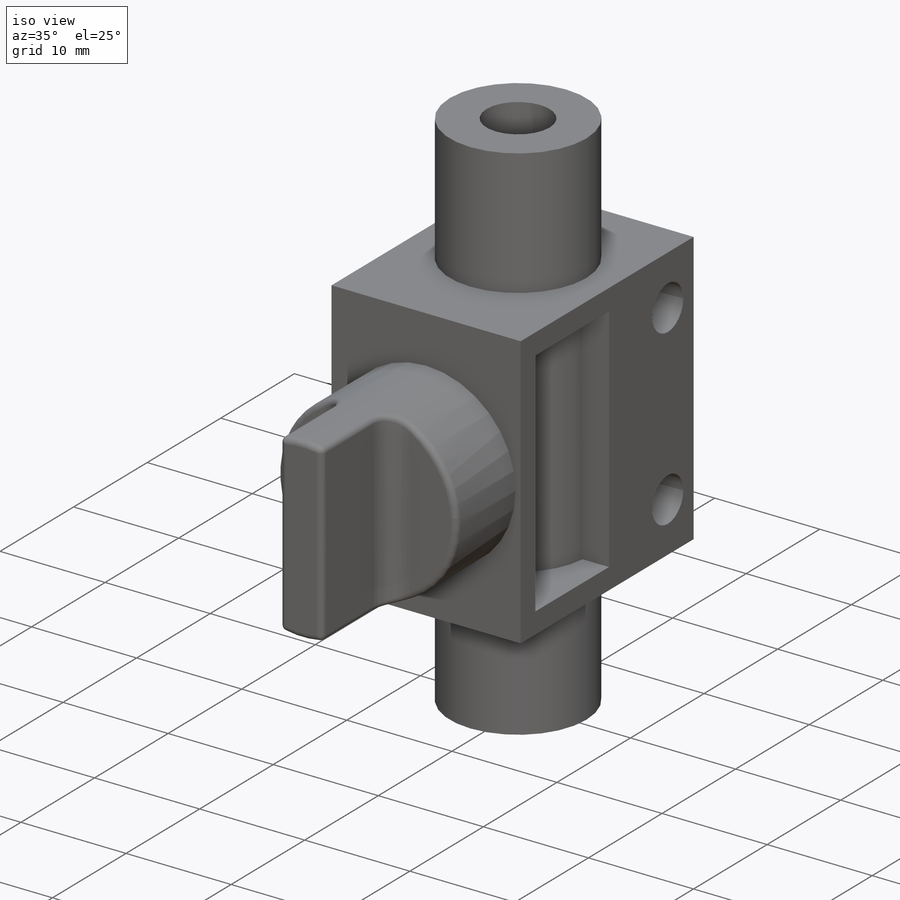
[diagram: iso view]
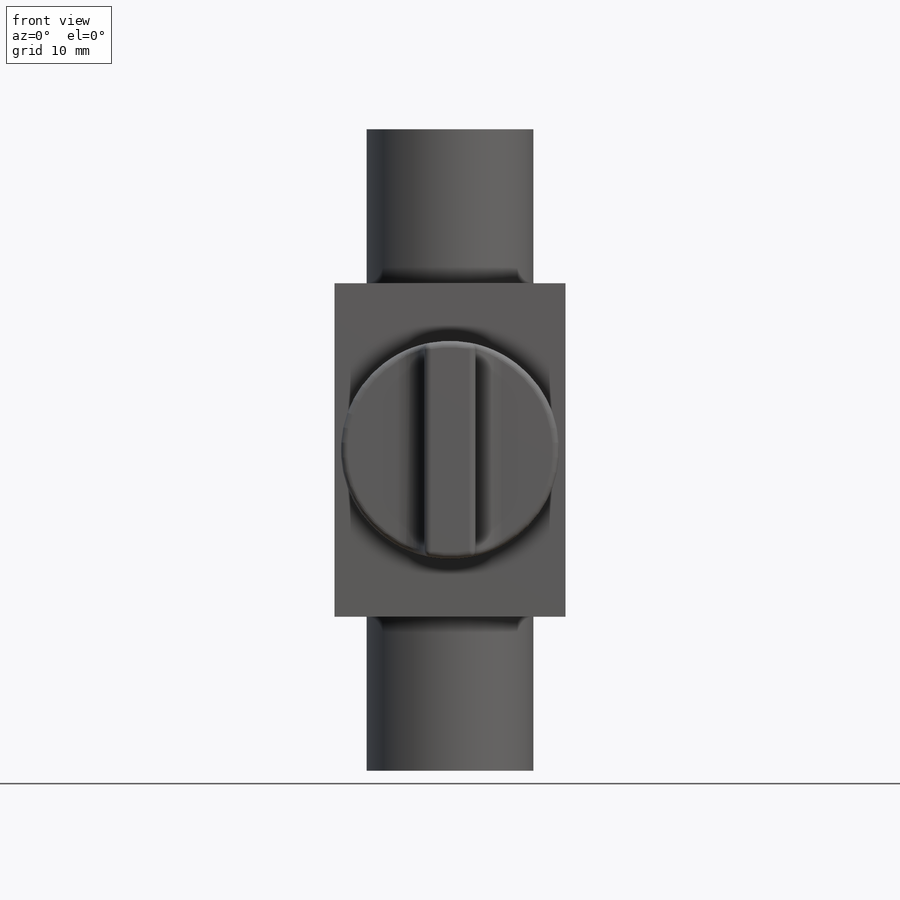
[diagram: front view]
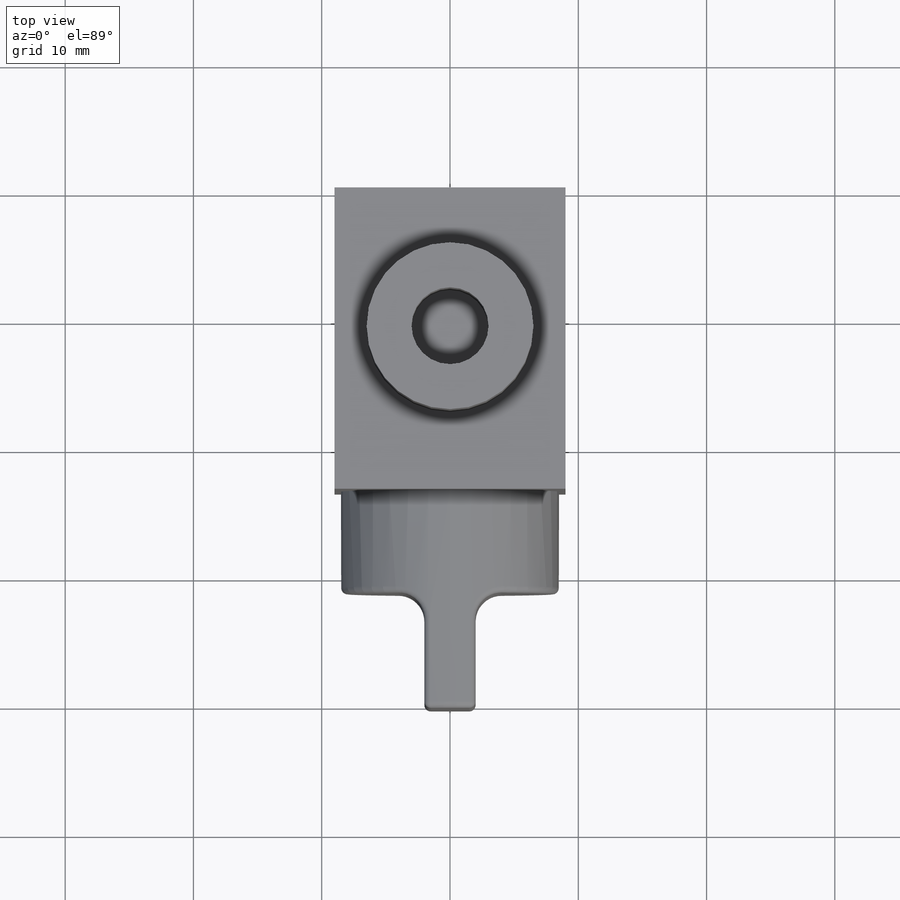
[diagram: top view]
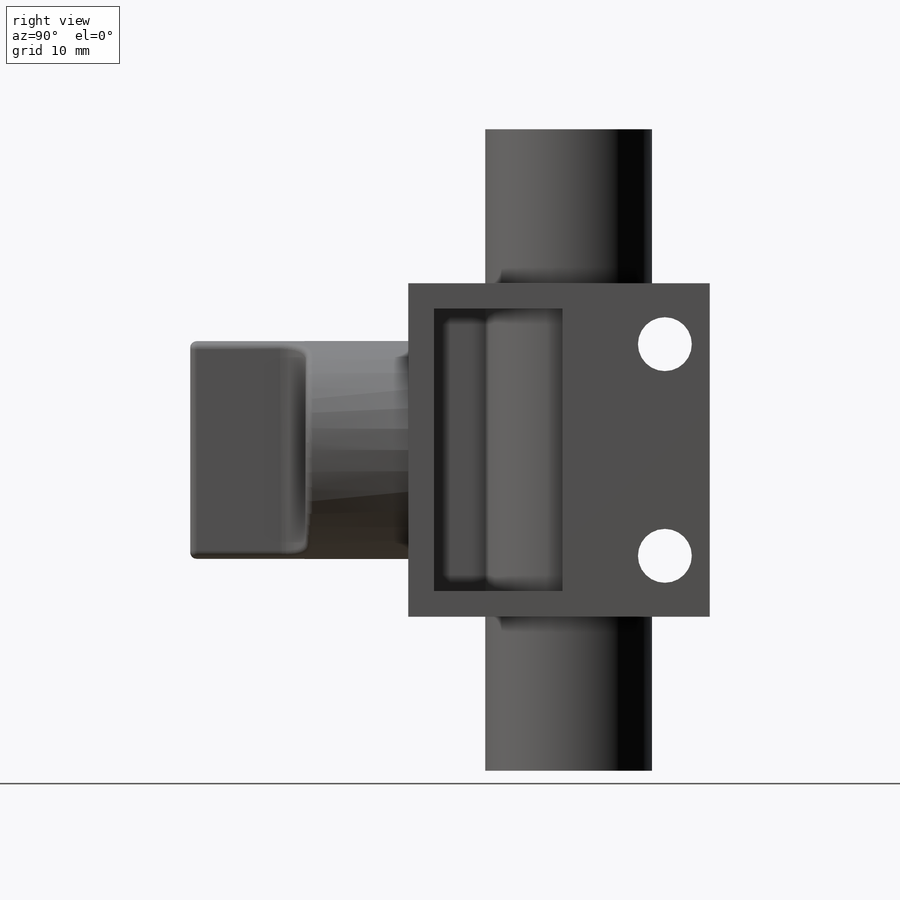
[diagram: right view]
SOLIDWORKS PART (.sldprt)
format: sldprt  version: not decoded by parser v0  size: 339,968 bytes
history: native  units: mm
features: sketch x6, plane x3, extrude x3, cut_extrude x3, fillet x2, material x1, mirror x1 + 2 further entries (+6 scaffold rows collapsed)
feature tree (27):
  scaffold x6  (default folders/planes/origin — collapsed)
  material  "材料 <未指定>"
  "ｻｰﾌｪｽ ﾎﾞﾃﾞｨ"
  "ｿﾘｯﾄﾞ ﾎﾞﾃﾞｨ"
  plane  "正面"
  plane  "平面"
  plane  "右側面"
  sketch  "ｽｹｯﾁ1"  dims[D1=9.0mm D2=26.0mm]
  extrude  "ﾎﾞｽ - 押し出し1"  Depth=23.5mm
  sketch  "ｽｹｯﾁ2"  dims[D1=2.0mm D2=2.0mm D3=2.0mm D4=10.0mm]
  cut_extrude  "ｶｯﾄ - 押し出し1"  Depth=8.5mm
  mirror  "ﾐﾗｰ1"
  sketch  "ｽｹｯﾁ3"  dims[c1.D1=13.0mm c1.D2=13.0mm c1.D3=13.0mm c1.D4=~7.494246mm c2.D2=9.0mm c2.D3=11.0mm c2.D4=3.5mm]
  extrude  "ﾎﾞｽ - 押し出し2"  Depth=12mm
  sketch  "ｽｹｯﾁ4"  dims[c1.D1=~2.874686mm c1.D2=~2.874686mm c1.D3=4.2mm c2.D1=8.25mm c2.D2=3.5mm]
  cut_extrude  "ｶｯﾄ - 押し出し2"  [1 undecoded]
  sketch  "ｽｹｯﾁ5"  dims[c1.D1=17.0mm c1.D2=17.0mm c1.D3=17.0mm c2.D2=13.0mm c2.D3=9.0mm]
  extrude  "ﾎﾞｽ - 押し出し3"  Depth=17mm
  sketch  "ｽｹｯﾁ7"  dims[D1=4.0mm]
  cut_extrude  "ｶｯﾄ - 押し出し3"  Depth=9mm
  fillet  "ﾌｨﾚｯﾄ1"  Radius=2mm
  fillet  "ﾌｨﾚｯﾄ2"  Radius=0.5mm
decode coverage: 13 of 15 modeling features carry decoded parameters; 2 rows unclassified (native names shown)
note: ~ marks probable driven/reference dimensions
note: 1 parameter value undecoded
note: suppression state not decoded; provenance and decode notes live in map.json
